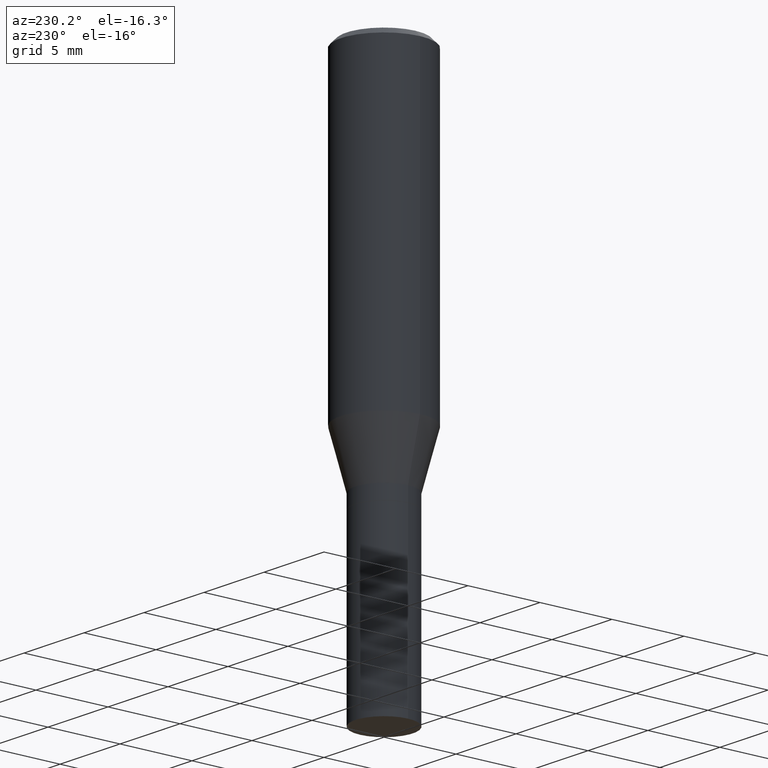
[diagram: clean part render]
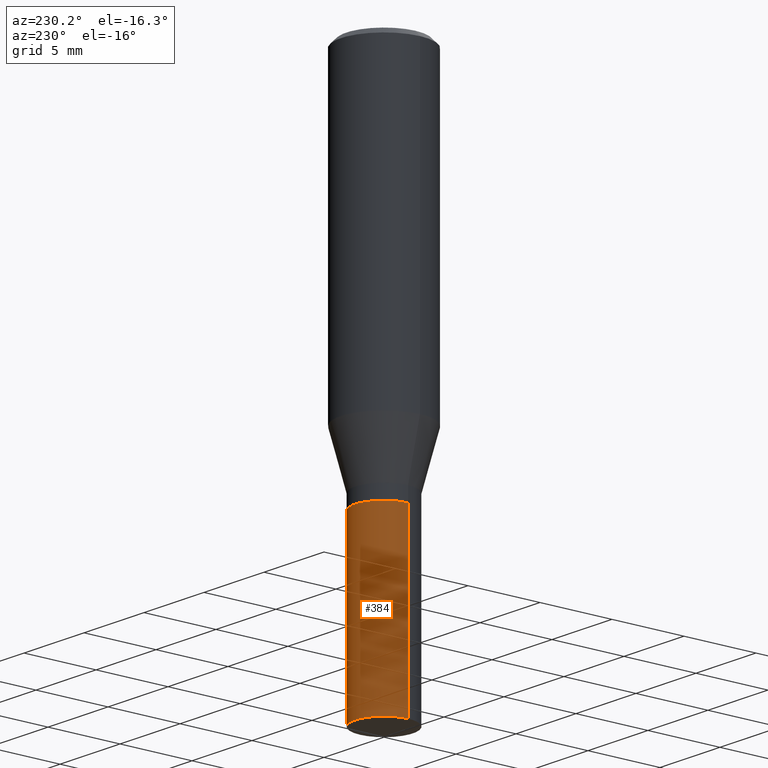
[diagram: same view with one face highlighted and labeled with its STEP entity id]
A machine part, auxiliary view. The second image highlights one B-rep face of the part: STEP entity #384.
In plain terms, the highlighted cylindrical surface (partial cylindrical patch) has radius 2.0002 mm, axis along (-0, 0, 1).
Its self-contained STEP definition (entity closure, byte-faithful):
#11 = VERTEX_POINT ( 'NONE', #275 ) ;
#12 = VECTOR ( 'NONE', #373, 39.37007874015748143 ) ;
#20 = DIRECTION ( 'NONE',  ( 1.000000000000000000, -6.982962677686261977E-15, 0.000000000000000000 ) ) ;
#23 = EDGE_CURVE ( 'NONE', #63, #312, #456, .T. ) ;
#40 = CIRCLE ( 'NONE', #97, 0.07875000000000000056 ) ;
#62 = CARTESIAN_POINT ( 'NONE',  ( -0.07875000000000000056, 5.595524044110789003E-16, -3.873661383575737792E-30 ) ) ;
#63 = VERTEX_POINT ( 'NONE', #280 ) ;
#66 = DIRECTION ( 'NONE',  ( 1.000000000000000000, -6.982962677686268288E-15, 0.000000000000000000 ) ) ;
#83 = CIRCLE ( 'NONE', #338, 0.07875000000000000056 ) ;
#85 = ORIENTED_EDGE ( 'NONE', *, *, #148, .F. ) ;
#89 = EDGE_CURVE ( 'NONE', #11, #312, #40, .T. ) ;
#97 = AXIS2_PLACEMENT_3D ( 'NONE', #348, #355, #66 ) ;
#119 = VERTEX_POINT ( 'NONE', #235 ) ;
#141 = FACE_OUTER_BOUND ( 'NONE', #267, .T. ) ;
#148 = EDGE_CURVE ( 'NONE', #119, #11, #380, .T. ) ;
#161 = AXIS2_PLACEMENT_3D ( 'NONE', #216, #283, #429 ) ;
#216 = CARTESIAN_POINT ( 'NONE',  ( 0.000000000000000000, 0.000000000000000000, 0.000000000000000000 ) ) ;
#217 = EDGE_CURVE ( 'NONE', #119, #63, #83, .T. ) ;
#220 = ORIENTED_EDGE ( 'NONE', *, *, #23, .T. ) ;
#235 = CARTESIAN_POINT ( 'NONE',  ( 0.07875000000000000056, -5.787130319132511522E-15, -1.500000000000000222 ) ) ;
#243 = CARTESIAN_POINT ( 'NONE',  ( 0.07875000000000000056, -5.499083108677934443E-16, 3.839989210939299016E-30 ) ) ;
#267 = EDGE_LOOP ( 'NONE', ( #463, #220, #362, #85 ) ) ;
#275 = CARTESIAN_POINT ( 'NONE',  ( 0.07875000000000000056, -4.137754534663010264E-15, -1.027600000000000069 ) ) ;
#280 = CARTESIAN_POINT ( 'NONE',  ( -0.07875000000000000056, -3.852981711618889535E-15, -1.500000000000000222 ) ) ;
#283 = DIRECTION ( 'NONE',  ( -2.445468806185136597E-29, 3.491481338843145583E-15, 1.000000000000000000 ) ) ;
#293 = CYLINDRICAL_SURFACE ( 'NONE', #161, 0.07875000000000000056 ) ;
#312 = VERTEX_POINT ( 'NONE', #321 ) ;
#321 = CARTESIAN_POINT ( 'NONE',  ( -0.07875000000000000056, -3.852981711618889535E-15, -1.027600000000000069 ) ) ;
#338 = AXIS2_PLACEMENT_3D ( 'NONE', #339, #340, #20 ) ;
#339 = CARTESIAN_POINT ( 'NONE',  ( 3.668203209277704895E-29, -5.237222008264718177E-15, -1.500000000000000222 ) ) ;
#340 = DIRECTION ( 'NONE',  ( -2.445468806185136597E-29, 3.491481338843145583E-15, 1.000000000000000000 ) ) ;
#348 = CARTESIAN_POINT ( 'NONE',  ( 2.512963745235846570E-29, -3.587846223795216918E-15, -1.027600000000000069 ) ) ;
#355 = DIRECTION ( 'NONE',  ( -2.445468806185136597E-29, 3.491481338843145583E-15, 1.000000000000000000 ) ) ;
#362 = ORIENTED_EDGE ( 'NONE', *, *, #89, .F. ) ;
#373 = DIRECTION ( 'NONE',  ( -2.445468806185136877E-29, 3.491481338843145188E-15, 1.000000000000000000 ) ) ;
#380 = LINE ( 'NONE', #243, #412 ) ;
#384 = ADVANCED_FACE ( 'NONE', ( #141 ), #293, .T. ) ;
#412 = VECTOR ( 'NONE', #445, 39.37007874015748143 ) ;
#429 = DIRECTION ( 'NONE',  ( 1.000000000000000000, -6.982962677686265922E-15, 4.876176775795935232E-29 ) ) ;
#445 = DIRECTION ( 'NONE',  ( -2.445468806185136877E-29, 3.491481338843145188E-15, 1.000000000000000000 ) ) ;
#456 = LINE ( 'NONE', #62, #12 ) ;
#463 = ORIENTED_EDGE ( 'NONE', *, *, #217, .T. ) ;